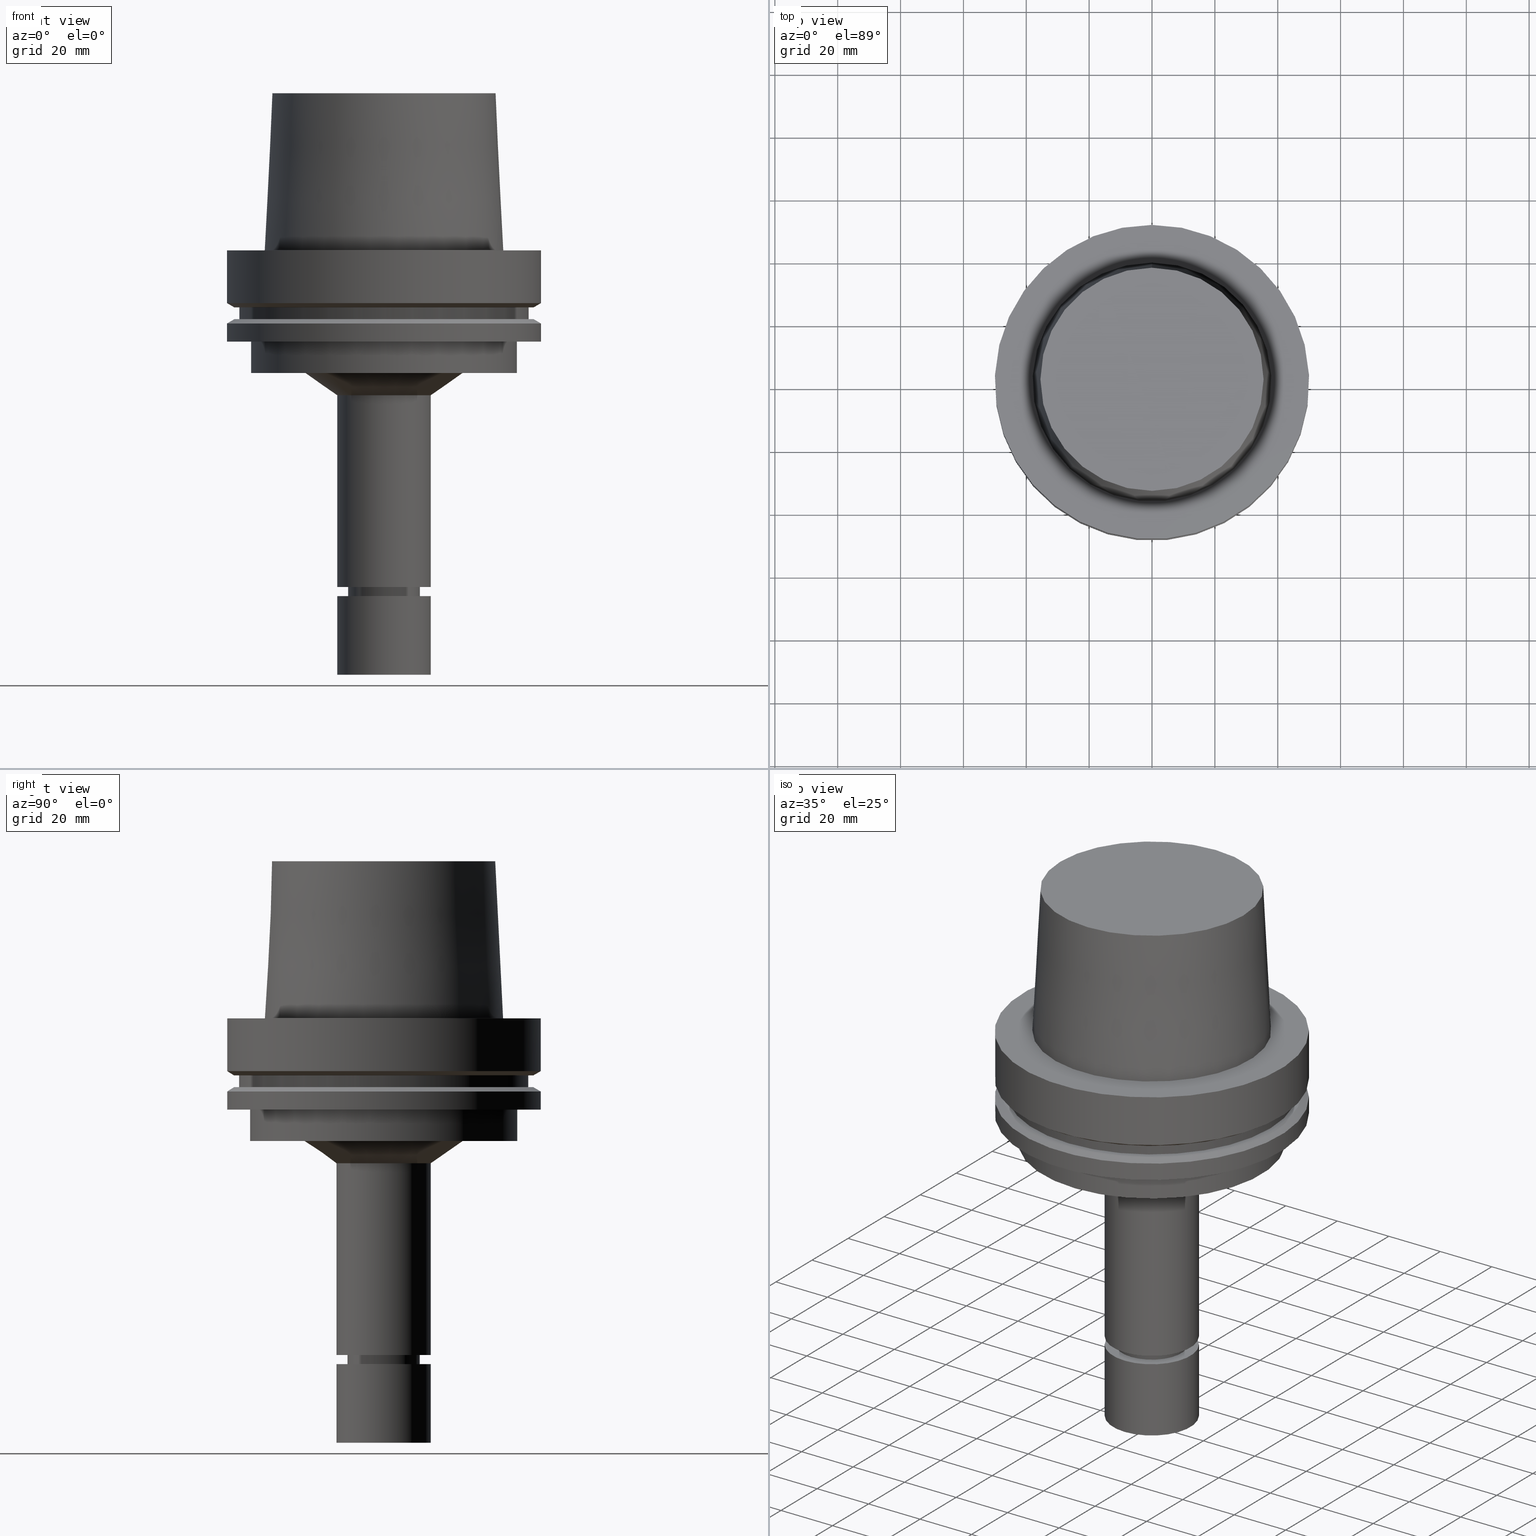
[diagram: canonical four-view strip — front | top / right | iso, engineering-drawing reading convention]
A machine part, canonical four-view strip (front | top / right | iso — engineering-drawing reading convention). The complete STEP part file that produces these views, byte-faithful:
ISO-10303-21;
HEADER;
FILE_DESCRIPTION((''),'1');
FILE_NAME('V:/90_\X2\53D65F9730C730FC30BF\X0\/00_\X2\6DE18DEF30C730FC30BF\X0\/ALL/HSK-BKUS\X2\52A05DE556F3\X0\_201801/HSK-A100-MEGAER/HSK-A100-MEGAER16-135NL.stp','2018-02-01T04:16:17',(''),(''),'Spatial Interop R21 SP3','Kubotek KeyCreator 2011 V10.0.2 (22737)',' ');
FILE_SCHEMA(('automotive_design'));
ENDSEC;
DATA;
#1=MECHANICAL_DESIGN_GEOMETRIC_PRESENTATION_REPRESENTATION(' ',(#14,#15,#16,#17,#18,#19,#20,#21,#22,#23,#24,#25,#26,#27,#28,#29,#30,#31,#32,#33,#34,#35,#36,#37,#38,#39,#40,#41,#42,#43,#44,#45,#46,#47,#48,#49,#50,#51,#52,#53,#54,#55,#56,#57,#58,#59,#60,#61),#10);
#2=PRODUCT_DEFINITION_CONTEXT('',#62,'design');
#3=APPLICATION_PROTOCOL_DEFINITION('INTERNATIONAL STANDARD','automotive_design',1994,#62);
#4=PRODUCT_CATEGORY_RELATIONSHIP('NONE','NONE',#63,#64);
#5=SHAPE_DEFINITION_REPRESENTATION(#65,#66);
#6=PRODUCT_DEFINITION_CONTEXT('',#67,'design');
#7=APPLICATION_PROTOCOL_DEFINITION('INTERNATIONAL STANDARD','automotive_design',1994,#67);
#8=PRODUCT_CATEGORY_RELATIONSHIP('NONE','NONE',#68,#69);
#9=SHAPE_DEFINITION_REPRESENTATION(#70,#71);
#10= (GEOMETRIC_REPRESENTATION_CONTEXT(3)GLOBAL_UNCERTAINTY_ASSIGNED_CONTEXT((#74))GLOBAL_UNIT_ASSIGNED_CONTEXT((#76,#77,#78))REPRESENTATION_CONTEXT('NONE','WORKSPACE'));
#14=STYLED_ITEM('',(#80,#81),#82);
#15=STYLED_ITEM('',(#83),#84);
#16=STYLED_ITEM('',(#85),#86);
#17=STYLED_ITEM('',(#87),#88);
#18=STYLED_ITEM('',(#89,#90),#91);
#19=STYLED_ITEM('',(#92),#93);
#20=STYLED_ITEM('',(#94,#95),#96);
#21=STYLED_ITEM('',(#97),#98);
#22=STYLED_ITEM('',(#99,#100),#101);
#23=STYLED_ITEM('',(#102,#103),#104);
#24=STYLED_ITEM('',(#105),#106);
#25=STYLED_ITEM('',(#107),#108);
#26=STYLED_ITEM('',(#109),#110);
#27=STYLED_ITEM('',(#111),#112);
#28=STYLED_ITEM('',(#113),#114);
#29=STYLED_ITEM('',(#115),#116);
#30=STYLED_ITEM('',(#117,#118),#119);
#31=STYLED_ITEM('',(#120,#121),#122);
#32=STYLED_ITEM('',(#123),#124);
#33=STYLED_ITEM('',(#125),#126);
#34=STYLED_ITEM('',(#127,#128),#129);
#35=STYLED_ITEM('',(#130,#131),#132);
#36=STYLED_ITEM('',(#133),#134);
#37=STYLED_ITEM('',(#135),#136);
#38=STYLED_ITEM('',(#137,#138),#139);
#39=STYLED_ITEM('',(#140,#141),#142);
#40=STYLED_ITEM('',(#143,#144),#145);
#41=STYLED_ITEM('',(#146),#147);
#42=STYLED_ITEM('',(#148,#149),#150);
#43=STYLED_ITEM('',(#151,#152),#153);
#44=STYLED_ITEM('',(#154,#155),#156);
#45=STYLED_ITEM('',(#157,#158),#159);
#46=STYLED_ITEM('',(#160),#161);
#47=STYLED_ITEM('',(#162),#163);
#48=STYLED_ITEM('',(#164,#165),#166);
#49=STYLED_ITEM('',(#167),#168);
#50=STYLED_ITEM('',(#169,#170),#171);
#51=STYLED_ITEM('',(#172,#173),#174);
#52=STYLED_ITEM('',(#175,#176),#177);
#53=STYLED_ITEM('',(#178,#179),#180);
#54=STYLED_ITEM('',(#181,#182),#183);
#55=STYLED_ITEM('',(#184),#185);
#56=STYLED_ITEM('',(#186),#187);
#57=STYLED_ITEM('',(#188),#189);
#58=STYLED_ITEM('',(#190,#191),#192);
#59=STYLED_ITEM('',(#193,#194),#195);
#60=STYLED_ITEM('',(#196,#197),#198);
#61=STYLED_ITEM('',(#199,#200),#201);
#62=APPLICATION_CONTEXT(' ');
#63=PRODUCT_CATEGORY('part','NONE');
#64=PRODUCT_RELATED_PRODUCT_CATEGORY('detail',' ',(#202));
#65=PRODUCT_DEFINITION_SHAPE('NONE','NONE',#203);
#66=ADVANCED_BREP_SHAPE_REPRESENTATION('Unnamed[1]',(#91,#204),#10);
#67=APPLICATION_CONTEXT(' ');
#68=PRODUCT_CATEGORY('part','NONE');
#69=PRODUCT_RELATED_PRODUCT_CATEGORY('detail',' ',(#205));
#70=PRODUCT_DEFINITION_SHAPE('NONE','NONE',#206);
#71=ADVANCED_BREP_SHAPE_REPRESENTATION('Unnamed[1]',(#129,#207),#10);
#74=UNCERTAINTY_MEASURE_WITH_UNIT(LENGTH_MEASURE(1.0E-006),#76,'','');
#76= (CONVERSION_BASED_UNIT('MILLIMETRE',#210)LENGTH_UNIT()NAMED_UNIT(#213));
#77= (NAMED_UNIT(#215)PLANE_ANGLE_UNIT()SI_UNIT($,.RADIAN.));
#78= (NAMED_UNIT(#215)SOLID_ANGLE_UNIT()SI_UNIT($,.STERADIAN.));
#80=PRESENTATION_STYLE_ASSIGNMENT((#221));
#81=PRESENTATION_STYLE_ASSIGNMENT((#222));
#82=ADVANCED_FACE('Unnamed[1]',(#223),#224,.T.);
#83=PRESENTATION_STYLE_ASSIGNMENT((#225));
#84=EDGE_CURVE('Unnamed[1]',#226,#226,#227,.T.);
#85=PRESENTATION_STYLE_ASSIGNMENT((#228));
#86=EDGE_CURVE('Unnamed[1]',#229,#229,#230,.T.);
#87=PRESENTATION_STYLE_ASSIGNMENT((#231));
#88=EDGE_CURVE('Unnamed[1]',#232,#232,#233,.T.);
#89=PRESENTATION_STYLE_ASSIGNMENT((#234));
#90=PRESENTATION_STYLE_ASSIGNMENT((#235));
#91=MANIFOLD_SOLID_BREP('Unnamed[1]',#236);
#92=PRESENTATION_STYLE_ASSIGNMENT((#237));
#93=EDGE_CURVE('Unnamed[1]',#238,#238,#239,.T.);
#94=PRESENTATION_STYLE_ASSIGNMENT((#240));
#95=PRESENTATION_STYLE_ASSIGNMENT((#241));
#96=ADVANCED_FACE('Unnamed[1]',(#242,#243),#244,.T.);
#97=PRESENTATION_STYLE_ASSIGNMENT((#245));
#98=EDGE_CURVE('Unnamed[1]',#246,#246,#247,.T.);
#99=PRESENTATION_STYLE_ASSIGNMENT((#248));
#100=PRESENTATION_STYLE_ASSIGNMENT((#249));
#101=ADVANCED_FACE('Unnamed[1]',(#250,#251),#252,.T.);
#102=PRESENTATION_STYLE_ASSIGNMENT((#253));
#103=PRESENTATION_STYLE_ASSIGNMENT((#254));
#104=ADVANCED_FACE('Unnamed[1]',(#255,#256),#257,.T.);
#105=PRESENTATION_STYLE_ASSIGNMENT((#258));
#106=EDGE_CURVE('Unnamed[1]',#259,#259,#260,.T.);
#107=PRESENTATION_STYLE_ASSIGNMENT((#261));
#108=EDGE_CURVE('Unnamed[1]',#262,#262,#263,.T.);
#109=PRESENTATION_STYLE_ASSIGNMENT((#264));
#110=EDGE_CURVE('Unnamed[1]',#265,#265,#266,.T.);
#111=PRESENTATION_STYLE_ASSIGNMENT((#267));
#112=EDGE_CURVE('Unnamed[1]',#268,#268,#269,.T.);
#113=PRESENTATION_STYLE_ASSIGNMENT((#270));
#114=EDGE_CURVE('Unnamed[1]',#271,#271,#272,.T.);
#115=PRESENTATION_STYLE_ASSIGNMENT((#273));
#116=EDGE_CURVE('Unnamed[1]',#274,#274,#275,.T.);
#117=PRESENTATION_STYLE_ASSIGNMENT((#276));
#118=PRESENTATION_STYLE_ASSIGNMENT((#277));
#119=ADVANCED_FACE('Unnamed[1]',(#278,#279),#280,.T.);
#120=PRESENTATION_STYLE_ASSIGNMENT((#281));
#121=PRESENTATION_STYLE_ASSIGNMENT((#282));
#122=ADVANCED_FACE('Unnamed[1]',(#283,#284),#285,.T.);
#123=PRESENTATION_STYLE_ASSIGNMENT((#286));
#124=EDGE_CURVE('Unnamed[1]',#287,#287,#288,.T.);
#125=PRESENTATION_STYLE_ASSIGNMENT((#289));
#126=EDGE_CURVE('Unnamed[1]',#290,#290,#291,.T.);
#127=PRESENTATION_STYLE_ASSIGNMENT((#292));
#128=PRESENTATION_STYLE_ASSIGNMENT((#293));
#129=MANIFOLD_SOLID_BREP('Unnamed[1]',#294);
#130=PRESENTATION_STYLE_ASSIGNMENT((#295));
#131=PRESENTATION_STYLE_ASSIGNMENT((#296));
#132=ADVANCED_FACE('Unnamed[1]',(#297,#298),#299,.T.);
#133=PRESENTATION_STYLE_ASSIGNMENT((#300));
#134=EDGE_CURVE('Unnamed[1]',#301,#301,#302,.T.);
#135=PRESENTATION_STYLE_ASSIGNMENT((#303));
#136=EDGE_CURVE('Unnamed[1]',#304,#304,#305,.T.);
#137=PRESENTATION_STYLE_ASSIGNMENT((#306));
#138=PRESENTATION_STYLE_ASSIGNMENT((#307));
#139=ADVANCED_FACE('Unnamed[1]',(#308,#309),#310,.T.);
#140=PRESENTATION_STYLE_ASSIGNMENT((#311));
#141=PRESENTATION_STYLE_ASSIGNMENT((#312));
#142=ADVANCED_FACE('Unnamed[1]',(#313,#314),#315,.T.);
#143=PRESENTATION_STYLE_ASSIGNMENT((#316));
#144=PRESENTATION_STYLE_ASSIGNMENT((#317));
#145=ADVANCED_FACE('Unnamed[1]',(#318,#319),#320,.T.);
#146=PRESENTATION_STYLE_ASSIGNMENT((#321));
#147=EDGE_CURVE('Unnamed[1]',#322,#322,#323,.T.);
#148=PRESENTATION_STYLE_ASSIGNMENT((#324));
#149=PRESENTATION_STYLE_ASSIGNMENT((#325));
#150=ADVANCED_FACE('Unnamed[1]',(#326),#327,.T.);
#151=PRESENTATION_STYLE_ASSIGNMENT((#328));
#152=PRESENTATION_STYLE_ASSIGNMENT((#329));
#153=ADVANCED_FACE('Unnamed[1]',(#330),#331,.T.);
#154=PRESENTATION_STYLE_ASSIGNMENT((#332));
#155=PRESENTATION_STYLE_ASSIGNMENT((#333));
#156=ADVANCED_FACE('Unnamed[1]',(#334,#335),#336,.T.);
#157=PRESENTATION_STYLE_ASSIGNMENT((#337));
#158=PRESENTATION_STYLE_ASSIGNMENT((#338));
#159=ADVANCED_FACE('Unnamed[1]',(#339,#340),#341,.T.);
#160=PRESENTATION_STYLE_ASSIGNMENT((#342));
#161=EDGE_CURVE('Unnamed[1]',#343,#343,#344,.T.);
#162=PRESENTATION_STYLE_ASSIGNMENT((#345));
#163=EDGE_CURVE('Unnamed[1]',#346,#346,#347,.T.);
#164=PRESENTATION_STYLE_ASSIGNMENT((#348));
#165=PRESENTATION_STYLE_ASSIGNMENT((#349));
#166=ADVANCED_FACE('Unnamed[1]',(#350,#351),#352,.T.);
#167=PRESENTATION_STYLE_ASSIGNMENT((#353));
#168=EDGE_CURVE('Unnamed[1]',#354,#354,#355,.T.);
#169=PRESENTATION_STYLE_ASSIGNMENT((#356));
#170=PRESENTATION_STYLE_ASSIGNMENT((#357));
#171=ADVANCED_FACE('Unnamed[1]',(#358,#359),#360,.T.);
#172=PRESENTATION_STYLE_ASSIGNMENT((#361));
#173=PRESENTATION_STYLE_ASSIGNMENT((#362));
#174=ADVANCED_FACE('Unnamed[1]',(#363,#364),#365,.T.);
#175=PRESENTATION_STYLE_ASSIGNMENT((#366));
#176=PRESENTATION_STYLE_ASSIGNMENT((#367));
#177=ADVANCED_FACE('Unnamed[1]',(#368,#369),#370,.T.);
#178=PRESENTATION_STYLE_ASSIGNMENT((#371));
#179=PRESENTATION_STYLE_ASSIGNMENT((#372));
#180=ADVANCED_FACE('Unnamed[1]',(#373,#374),#375,.T.);
#181=PRESENTATION_STYLE_ASSIGNMENT((#376));
#182=PRESENTATION_STYLE_ASSIGNMENT((#377));
#183=ADVANCED_FACE('Unnamed[1]',(#378),#379,.T.);
#184=PRESENTATION_STYLE_ASSIGNMENT((#380));
#185=EDGE_CURVE('Unnamed[1]',#381,#381,#382,.T.);
#186=PRESENTATION_STYLE_ASSIGNMENT((#383));
#187=EDGE_CURVE('Unnamed[1]',#384,#384,#385,.T.);
#188=PRESENTATION_STYLE_ASSIGNMENT((#386));
#189=EDGE_CURVE('Unnamed[1]',#387,#387,#388,.T.);
#190=PRESENTATION_STYLE_ASSIGNMENT((#389));
#191=PRESENTATION_STYLE_ASSIGNMENT((#390));
#192=ADVANCED_FACE('Unnamed[1]',(#391,#392),#393,.T.);
#193=PRESENTATION_STYLE_ASSIGNMENT((#394));
#194=PRESENTATION_STYLE_ASSIGNMENT((#395));
#195=ADVANCED_FACE('Unnamed[1]',(#396,#397),#398,.T.);
#196=PRESENTATION_STYLE_ASSIGNMENT((#399));
#197=PRESENTATION_STYLE_ASSIGNMENT((#400));
#198=ADVANCED_FACE('Unnamed[1]',(#401,#402),#403,.T.);
#199=PRESENTATION_STYLE_ASSIGNMENT((#404));
#200=PRESENTATION_STYLE_ASSIGNMENT((#405));
#201=ADVANCED_FACE('Unnamed[1]',(#406,#407),#408,.T.);
#202=PRODUCT('Unnamed[1]','Unnamed[1]','PART-Unnamed[1]-DESC',(#409));
#203=PRODUCT_DEFINITION('NONE','NONE',#410,#2);
#204=AXIS2_PLACEMENT_3D('',#411,#412,#413);
#205=PRODUCT('Unnamed[1]','Unnamed[1]','PART-Unnamed[1]-DESC',(#414));
#206=PRODUCT_DEFINITION('NONE','NONE',#415,#6);
#207=AXIS2_PLACEMENT_3D('',#416,#417,#418);
#210=LENGTH_MEASURE_WITH_UNIT(LENGTH_MEASURE(1.0),#419);
#213=DIMENSIONAL_EXPONENTS(1.0,0.0,0.0,0.0,0.0,0.0,0.0);
#215=DIMENSIONAL_EXPONENTS(0.0,0.0,0.0,0.0,0.0,0.0,0.0);
#221=SURFACE_STYLE_USAGE(.BOTH.,#420);
#222=CURVE_STYLE('',#421,POSITIVE_LENGTH_MEASURE(1000.0),#422);
#223=FACE_OUTER_BOUND('',#423,.T.);
#224=PLANE('',#424);
#225=CURVE_STYLE('',#425,POSITIVE_LENGTH_MEASURE(1000.0),#426);
#226=VERTEX_POINT('',#427);
#227=CIRCLE('',#428,46.0);
#228=CURVE_STYLE('',#429,POSITIVE_LENGTH_MEASURE(1000.0),#430);
#229=VERTEX_POINT('',#431);
#230=CIRCLE('',#432,25.1435726714537);
#231=CURVE_STYLE('',#433,POSITIVE_LENGTH_MEASURE(1000.0),#434);
#232=VERTEX_POINT('',#435);
#233=CIRCLE('',#436,15.0000000000005);
#234=SURFACE_STYLE_USAGE(.BOTH.,#437);
#235=CURVE_STYLE('',#438,POSITIVE_LENGTH_MEASURE(1000.0),#439);
#236=CLOSED_SHELL('',(#183,#192,#119,#132,#101,#201,#174,#156,#198,#122,#195,#145,#177,#104,#96,#180,#139,#171,#142,#166,#82));
#237=CURVE_STYLE('',#440,POSITIVE_LENGTH_MEASURE(1000.0),#441);
#238=VERTEX_POINT('',#442);
#239=CIRCLE('',#443,42.5);
#240=SURFACE_STYLE_USAGE(.BOTH.,#444);
#241=CURVE_STYLE('',#445,POSITIVE_LENGTH_MEASURE(1000.0),#446);
#242=FACE_BOUND('',#447,.T.);
#243=FACE_BOUND('',#448,.T.);
#244=CYLINDRICAL_SURFACE('',#449,15.0000000000004);
#245=CURVE_STYLE('',#450,POSITIVE_LENGTH_MEASURE(1000.0),#451);
#246=VERTEX_POINT('',#452);
#247=CIRCLE('',#453,47.62259526);
#248=SURFACE_STYLE_USAGE(.BOTH.,#454);
#249=CURVE_STYLE('',#455,POSITIVE_LENGTH_MEASURE(1000.0),#456);
#250=FACE_BOUND('',#457,.T.);
#251=FACE_BOUND('',#458,.T.);
#252=CONICAL_SURFACE('',#459,48.81129763,1.04719755328238);
#253=SURFACE_STYLE_USAGE(.BOTH.,#460);
#254=CURVE_STYLE('',#461,POSITIVE_LENGTH_MEASURE(1000.0),#462);
#255=FACE_BOUND('',#463,.T.);
#256=FACE_BOUND('',#464,.T.);
#257=CONICAL_SURFACE('',#465,20.0717863357271,0.962446965226415);
#258=CURVE_STYLE('',#466,POSITIVE_LENGTH_MEASURE(1000.0),#467);
#259=VERTEX_POINT('',#468);
#260=CIRCLE('',#469,9.89999999999962);
#261=CURVE_STYLE('',#470,POSITIVE_LENGTH_MEASURE(1000.0),#471);
#262=VERTEX_POINT('',#472);
#263=CIRCLE('',#473,50.0);
#264=CURVE_STYLE('',#474,POSITIVE_LENGTH_MEASURE(1000.0),#475);
#265=VERTEX_POINT('',#476);
#266=CIRCLE('',#477,46.0);
#267=CURVE_STYLE('',#478,POSITIVE_LENGTH_MEASURE(1000.0),#479);
#268=VERTEX_POINT('',#480);
#269=CIRCLE('',#481,11.4999999999907);
#270=CURVE_STYLE('',#482,POSITIVE_LENGTH_MEASURE(1000.0),#483);
#271=VERTEX_POINT('',#484);
#272=CIRCLE('',#485,10.9999999999999);
#273=CURVE_STYLE('',#486,POSITIVE_LENGTH_MEASURE(1000.0),#487);
#274=VERTEX_POINT('',#488);
#275=CIRCLE('',#489,15.0000000000001);
#276=SURFACE_STYLE_USAGE(.BOTH.,#490);
#277=CURVE_STYLE('',#491,POSITIVE_LENGTH_MEASURE(1000.0),#492);
#278=FACE_OUTER_BOUND('',#493,.T.);
#279=FACE_BOUND('',#494,.T.);
#280=PLANE('',#495);
#281=SURFACE_STYLE_USAGE(.BOTH.,#496);
#282=CURVE_STYLE('',#497,POSITIVE_LENGTH_MEASURE(1000.0),#498);
#283=FACE_BOUND('',#499,.T.);
#284=FACE_BOUND('',#500,.T.);
#285=CYLINDRICAL_SURFACE('',#501,50.0);
#286=CURVE_STYLE('',#502,POSITIVE_LENGTH_MEASURE(1000.0),#503);
#287=VERTEX_POINT('',#504);
#288=CIRCLE('',#505,50.0);
#289=CURVE_STYLE('',#506,POSITIVE_LENGTH_MEASURE(1000.0),#507);
#290=VERTEX_POINT('',#508);
#291=CIRCLE('',#509,15.0);
#292=SURFACE_STYLE_USAGE(.BOTH.,#510);
#293=CURVE_STYLE('',#511,POSITIVE_LENGTH_MEASURE(1000.0),#512);
#294=CLOSED_SHELL('',(#150,#153,#159));
#295=SURFACE_STYLE_USAGE(.BOTH.,#513);
#296=CURVE_STYLE('',#514,POSITIVE_LENGTH_MEASURE(1000.0),#515);
#297=FACE_BOUND('',#516,.T.);
#298=FACE_BOUND('',#517,.T.);
#299=CYLINDRICAL_SURFACE('',#518,50.0);
#300=CURVE_STYLE('',#519,POSITIVE_LENGTH_MEASURE(1000.0),#520);
#301=VERTEX_POINT('',#521);
#302=CIRCLE('',#522,47.62259526);
#303=CURVE_STYLE('',#523,POSITIVE_LENGTH_MEASURE(1000.0),#524);
#304=VERTEX_POINT('',#525);
#305=CIRCLE('',#526,37.9999999999349);
#306=SURFACE_STYLE_USAGE(.BOTH.,#527);
#307=CURVE_STYLE('',#528,POSITIVE_LENGTH_MEASURE(1000.0),#529);
#308=FACE_BOUND('',#530,.T.);
#309=FACE_BOUND('',#531,.T.);
#310=CYLINDRICAL_SURFACE('',#532,11.4999999999964);
#311=SURFACE_STYLE_USAGE(.BOTH.,#533);
#312=CURVE_STYLE('',#534,POSITIVE_LENGTH_MEASURE(1000.0),#535);
#313=FACE_BOUND('',#536,.T.);
#314=FACE_BOUND('',#537,.T.);
#315=CYLINDRICAL_SURFACE('',#538,11.0000000000001);
#316=SURFACE_STYLE_USAGE(.BOTH.,#539);
#317=CURVE_STYLE('',#540,POSITIVE_LENGTH_MEASURE(1000.0),#541);
#318=FACE_BOUND('',#542,.T.);
#319=FACE_BOUND('',#543,.T.);
#320=CYLINDRICAL_SURFACE('',#544,42.5);
#321=CURVE_STYLE('',#545,POSITIVE_LENGTH_MEASURE(1000.0),#546);
#322=VERTEX_POINT('',#547);
#323=CIRCLE('',#548,11.0000000000003);
#324=SURFACE_STYLE_USAGE(.BOTH.,#549);
#325=CURVE_STYLE('',#550,POSITIVE_LENGTH_MEASURE(1000.0),#551);
#326=FACE_OUTER_BOUND('',#552,.T.);
#327=PLANE('',#553);
#328=SURFACE_STYLE_USAGE(.BOTH.,#554);
#329=CURVE_STYLE('',#555,POSITIVE_LENGTH_MEASURE(1000.0),#556);
#330=FACE_OUTER_BOUND('',#557,.T.);
#331=PLANE('',#558);
#332=SURFACE_STYLE_USAGE(.BOTH.,#559);
#333=CURVE_STYLE('',#560,POSITIVE_LENGTH_MEASURE(1000.0),#561);
#334=FACE_OUTER_BOUND('',#562,.T.);
#335=FACE_BOUND('',#563,.T.);
#336=PLANE('',#564);
#337=SURFACE_STYLE_USAGE(.BOTH.,#565);
#338=CURVE_STYLE('',#566,POSITIVE_LENGTH_MEASURE(1000.0),#567);
#339=FACE_BOUND('',#568,.T.);
#340=FACE_BOUND('',#569,.T.);
#341=CYLINDRICAL_SURFACE('',#570,15.0);
#342=CURVE_STYLE('',#571,POSITIVE_LENGTH_MEASURE(1000.0),#572);
#343=VERTEX_POINT('',#573);
#344=CIRCLE('',#574,35.5000000015618);
#345=CURVE_STYLE('',#575,POSITIVE_LENGTH_MEASURE(1000.0),#576);
#346=VERTEX_POINT('',#577);
#347=CIRCLE('',#578,50.0);
#348=SURFACE_STYLE_USAGE(.BOTH.,#579);
#349=CURVE_STYLE('',#580,POSITIVE_LENGTH_MEASURE(1000.0),#581);
#350=FACE_BOUND('',#582,.T.);
#351=FACE_BOUND('',#583,.T.);
#352=CONICAL_SURFACE('',#584,10.4499999999999,0.523598775598224);
#353=CURVE_STYLE('',#585,POSITIVE_LENGTH_MEASURE(1000.0),#586);
#354=VERTEX_POINT('',#587);
#355=CIRCLE('',#588,11.5000000000021);
#356=SURFACE_STYLE_USAGE(.BOTH.,#589);
#357=CURVE_STYLE('',#590,POSITIVE_LENGTH_MEASURE(1000.0),#591);
#358=FACE_BOUND('',#592,.T.);
#359=FACE_BOUND('',#593,.T.);
#360=CONICAL_SURFACE('',#594,11.250000000001,1.04719755118896);
#361=SURFACE_STYLE_USAGE(.BOTH.,#595);
#362=CURVE_STYLE('',#596,POSITIVE_LENGTH_MEASURE(1000.0),#597);
#363=FACE_BOUND('',#598,.T.);
#364=FACE_BOUND('',#599,.T.);
#365=CYLINDRICAL_SURFACE('',#600,46.0);
#366=SURFACE_STYLE_USAGE(.BOTH.,#601);
#367=CURVE_STYLE('',#602,POSITIVE_LENGTH_MEASURE(1000.0),#603);
#368=FACE_BOUND('',#604,.T.);
#369=FACE_OUTER_BOUND('',#605,.T.);
#370=PLANE('',#606);
#371=SURFACE_STYLE_USAGE(.BOTH.,#607);
#372=CURVE_STYLE('',#608,POSITIVE_LENGTH_MEASURE(1000.0),#609);
#373=FACE_BOUND('',#610,.T.);
#374=FACE_OUTER_BOUND('',#611,.T.);
#375=PLANE('',#612);
#376=SURFACE_STYLE_USAGE(.BOTH.,#613);
#377=CURVE_STYLE('',#614,POSITIVE_LENGTH_MEASURE(1000.0),#615);
#378=FACE_OUTER_BOUND('',#616,.T.);
#379=PLANE('',#617);
#380=CURVE_STYLE('',#618,POSITIVE_LENGTH_MEASURE(1000.0),#619);
#381=VERTEX_POINT('',#620);
#382=CIRCLE('',#621,42.5);
#383=CURVE_STYLE('',#622,POSITIVE_LENGTH_MEASURE(1000.0),#623);
#384=VERTEX_POINT('',#624);
#385=CIRCLE('',#625,15.0000000000002);
#386=CURVE_STYLE('',#626,POSITIVE_LENGTH_MEASURE(1000.0),#627);
#387=VERTEX_POINT('',#628);
#388=CIRCLE('',#629,50.0);
#389=SURFACE_STYLE_USAGE(.BOTH.,#630);
#390=CURVE_STYLE('',#631,POSITIVE_LENGTH_MEASURE(1000.0),#632);
#391=FACE_BOUND('',#633,.T.);
#392=FACE_BOUND('',#634,.T.);
#393=CONICAL_SURFACE('',#635,36.7500000007484,0.0499583956894843);
#394=SURFACE_STYLE_USAGE(.BOTH.,#636);
#395=CURVE_STYLE('',#637,POSITIVE_LENGTH_MEASURE(1000.0),#638);
#396=FACE_BOUND('',#639,.T.);
#397=FACE_OUTER_BOUND('',#640,.T.);
#398=PLANE('',#641);
#399=SURFACE_STYLE_USAGE(.BOTH.,#642);
#400=CURVE_STYLE('',#643,POSITIVE_LENGTH_MEASURE(1000.0),#644);
#401=FACE_BOUND('',#645,.T.);
#402=FACE_BOUND('',#646,.T.);
#403=CONICAL_SURFACE('',#647,48.81129763,1.04719755328238);
#404=SURFACE_STYLE_USAGE(.BOTH.,#648);
#405=CURVE_STYLE('',#649,POSITIVE_LENGTH_MEASURE(1000.0),#650);
#406=FACE_BOUND('',#651,.T.);
#407=FACE_OUTER_BOUND('',#652,.T.);
#408=PLANE('',#653);
#409=PRODUCT_CONTEXT('',#62,'mechanical');
#410=PRODUCT_DEFINITION_FORMATION_WITH_SPECIFIED_SOURCE(' ','NONE',#202,.NOT_KNOWN.);
#411=CARTESIAN_POINT('',(0.0,0.0,0.0));
#412=DIRECTION('',(0.0,0.0,1.0));
#413=DIRECTION('',(1.0,0.0,0.0));
#414=PRODUCT_CONTEXT('',#67,'mechanical');
#415=PRODUCT_DEFINITION_FORMATION_WITH_SPECIFIED_SOURCE(' ','NONE',#205,.NOT_KNOWN.);
#416=CARTESIAN_POINT('',(0.0,0.0,0.0));
#417=DIRECTION('',(0.0,0.0,1.0));
#418=DIRECTION('',(1.0,0.0,0.0));
#419= (NAMED_UNIT(#213)LENGTH_UNIT()SI_UNIT(.MILLI.,.METRE.));
#420=SURFACE_SIDE_STYLE('',(#655));
#421=DRAUGHTING_PRE_DEFINED_CURVE_FONT('continuous');
#422=COLOUR_RGB('',0.0,1.0,0.0);
#423=EDGE_LOOP('',(#656));
#424=AXIS2_PLACEMENT_3D('',#657,#658,#659);
#425=DRAUGHTING_PRE_DEFINED_CURVE_FONT('continuous');
#426=COLOUR_RGB('',0.0,1.0,0.0);
#427=CARTESIAN_POINT('',(1.33945743656742E-015,46.0,-21.875));
#428=AXIS2_PLACEMENT_3D('',#660,#661,#662);
#429=DRAUGHTING_PRE_DEFINED_CURVE_FONT('continuous');
#430=COLOUR_RGB('',0.0,1.0,0.0);
#431=CARTESIAN_POINT('',(2.38806125833734E-015,25.1435726714537,-39.0));
#432=AXIS2_PLACEMENT_3D('',#663,#664,#665);
#433=DRAUGHTING_PRE_DEFINED_CURVE_FONT('continuous');
#434=COLOUR_RGB('',0.0,1.0,0.0);
#435=CARTESIAN_POINT('',(2.82064573737379E-015,15.0000000000005,-46.0646406676217));
#436=AXIS2_PLACEMENT_3D('',#666,#667,#668);
#437=SURFACE_SIDE_STYLE('',(#669));
#438=DRAUGHTING_PRE_DEFINED_CURVE_FONT('continuous');
#439=COLOUR_RGB('',0.0,1.0,0.0);
#440=DRAUGHTING_PRE_DEFINED_CURVE_FONT('continuous');
#441=COLOUR_RGB('',0.0,1.0,0.0);
#442=CARTESIAN_POINT('',(1.77573785876366E-015,42.5,-29.0));
#443=AXIS2_PLACEMENT_3D('',#670,#671,#672);
#444=SURFACE_SIDE_STYLE('',(#673));
#445=DRAUGHTING_PRE_DEFINED_CURVE_FONT('continuous');
#446=COLOUR_RGB('',0.0,1.0,0.0);
#447=EDGE_LOOP('',(#674));
#448=EDGE_LOOP('',(#675));
#449=AXIS2_PLACEMENT_3D('',#676,#677,#678);
#450=DRAUGHTING_PRE_DEFINED_CURVE_FONT('continuous');
#451=COLOUR_RGB('',0.0,1.0,0.0);
#452=CARTESIAN_POINT('',(1.10983616172729E-015,47.62259526,-18.125));
#453=AXIS2_PLACEMENT_3D('',#679,#680,#681);
#454=SURFACE_SIDE_STYLE('',(#682));
#455=DRAUGHTING_PRE_DEFINED_CURVE_FONT('continuous');
#456=COLOUR_RGB('',0.0,1.0,0.0);
#457=EDGE_LOOP('',(#683));
#458=EDGE_LOOP('',(#684));
#459=AXIS2_PLACEMENT_3D('',#685,#686,#687);
#460=SURFACE_SIDE_STYLE('',(#688));
#461=DRAUGHTING_PRE_DEFINED_CURVE_FONT('continuous');
#462=COLOUR_RGB('',0.0,1.0,0.0);
#463=EDGE_LOOP('',(#689));
#464=EDGE_LOOP('',(#690));
#465=AXIS2_PLACEMENT_3D('',#691,#692,#693);
#466=DRAUGHTING_PRE_DEFINED_CURVE_FONT('continuous');
#467=COLOUR_RGB('',0.0,1.0,0.0);
#468=CARTESIAN_POINT('',(7.72752130261974E-015,9.89999999999963,-126.199999999999));
#469=AXIS2_PLACEMENT_3D('',#694,#695,#696);
#470=DRAUGHTING_PRE_DEFINED_CURVE_FONT('continuous');
#471=COLOUR_RGB('',0.0,1.0,0.0);
#472=CARTESIAN_POINT('',(1.0257889421431E-015,50.0,-16.75240474));
#473=AXIS2_PLACEMENT_3D('',#697,#698,#699);
#474=DRAUGHTING_PRE_DEFINED_CURVE_FONT('continuous');
#475=COLOUR_RGB('',0.0,1.0,0.0);
#476=CARTESIAN_POINT('',(1.10983616172729E-015,46.0,-18.125));
#477=AXIS2_PLACEMENT_3D('',#700,#701,#702);
#478=DRAUGHTING_PRE_DEFINED_CURVE_FONT('continuous');
#479=COLOUR_RGB('',0.0,1.0,0.0);
#480=CARTESIAN_POINT('',(6.55798360943408E-015,11.4999999999907,-107.1));
#481=AXIS2_PLACEMENT_3D('',#703,#704,#705);
#482=DRAUGHTING_PRE_DEFINED_CURVE_FONT('continuous');
#483=COLOUR_RGB('',0.0,1.0,0.0);
#484=CARTESIAN_POINT('',(6.93150088317393E-015,10.9999999999999,-113.199999999998));
#485=AXIS2_PLACEMENT_3D('',#706,#707,#708);
#486=DRAUGHTING_PRE_DEFINED_CURVE_FONT('continuous');
#487=COLOUR_RGB('',0.0,1.0,0.0);
#488=CARTESIAN_POINT('',(6.73555739531044E-015,15.0000000000001,-110.0));
#489=AXIS2_PLACEMENT_3D('',#709,#710,#711);
#490=SURFACE_SIDE_STYLE('',(#712));
#491=DRAUGHTING_PRE_DEFINED_CURVE_FONT('continuous');
#492=COLOUR_RGB('',0.0,1.0,0.0);
#493=EDGE_LOOP('',(#713));
#494=EDGE_LOOP('',(#714));
#495=AXIS2_PLACEMENT_3D('',#715,#716,#717);
#496=SURFACE_SIDE_STYLE('',(#718));
#497=DRAUGHTING_PRE_DEFINED_CURVE_FONT('continuous');
#498=COLOUR_RGB('',0.0,1.0,0.0);
#499=EDGE_LOOP('',(#719));
#500=EDGE_LOOP('',(#720));
#501=AXIS2_PLACEMENT_3D('',#721,#722,#723);
#502=DRAUGHTING_PRE_DEFINED_CURVE_FONT('continuous');
#503=COLOUR_RGB('',0.0,1.0,0.0);
#504=CARTESIAN_POINT('',(1.42350465615161E-015,50.0,-23.24759526));
#505=AXIS2_PLACEMENT_3D('',#724,#725,#726);
#506=DRAUGHTING_PRE_DEFINED_CURVE_FONT('continuous');
#507=COLOUR_RGB('',0.0,1.0,0.0);
#508=CARTESIAN_POINT('',(8.26636589424463E-015,15.0,-135.0));
#509=AXIS2_PLACEMENT_3D('',#727,#728,#729);
#510=SURFACE_SIDE_STYLE('',(#730));
#511=DRAUGHTING_PRE_DEFINED_CURVE_FONT('continuous');
#512=COLOUR_RGB('',0.0,1.0,0.0);
#513=SURFACE_SIDE_STYLE('',(#731));
#514=DRAUGHTING_PRE_DEFINED_CURVE_FONT('continuous');
#515=COLOUR_RGB('',0.0,1.0,0.0);
#516=EDGE_LOOP('',(#732));
#517=EDGE_LOOP('',(#733));
#518=AXIS2_PLACEMENT_3D('',#734,#735,#736);
#519=DRAUGHTING_PRE_DEFINED_CURVE_FONT('continuous');
#520=COLOUR_RGB('',0.0,1.0,0.0);
#521=CARTESIAN_POINT('',(1.33945743656742E-015,47.62259526,-21.875));
#522=AXIS2_PLACEMENT_3D('',#737,#738,#739);
#523=DRAUGHTING_PRE_DEFINED_CURVE_FONT('continuous');
#524=COLOUR_RGB('',0.0,1.0,0.0);
#525=CARTESIAN_POINT('',(-3.3636548776863E-032,37.9999999999349,-2.44634216324803E-015));
#526=AXIS2_PLACEMENT_3D('',#740,#741,#742);
#527=SURFACE_SIDE_STYLE('',(#743));
#528=DRAUGHTING_PRE_DEFINED_CURVE_FONT('continuous');
#529=COLOUR_RGB('',0.0,1.0,0.0);
#530=EDGE_LOOP('',(#744));
#531=EDGE_LOOP('',(#745));
#532=AXIS2_PLACEMENT_3D('',#746,#747,#748);
#533=SURFACE_SIDE_STYLE('',(#749));
#534=DRAUGHTING_PRE_DEFINED_CURVE_FONT('continuous');
#535=COLOUR_RGB('',0.0,1.0,0.0);
#536=EDGE_LOOP('',(#750));
#537=EDGE_LOOP('',(#751));
#538=AXIS2_PLACEMENT_3D('',#752,#753,#754);
#539=SURFACE_SIDE_STYLE('',(#755));
#540=DRAUGHTING_PRE_DEFINED_CURVE_FONT('continuous');
#541=COLOUR_RGB('',0.0,1.0,0.0);
#542=EDGE_LOOP('',(#756));
#543=EDGE_LOOP('',(#757));
#544=AXIS2_PLACEMENT_3D('',#758,#759,#760);
#545=DRAUGHTING_PRE_DEFINED_CURVE_FONT('continuous');
#546=COLOUR_RGB('',0.0,1.0,0.0);
#547=CARTESIAN_POINT('',(7.61085802635992E-015,11.0000000000003,-124.294744111672));
#548=AXIS2_PLACEMENT_3D('',#761,#762,#763);
#549=SURFACE_SIDE_STYLE('',(#764));
#550=DRAUGHTING_PRE_DEFINED_CURVE_FONT('continuous');
#551=COLOUR_RGB('',0.0,1.0,0.0);
#552=EDGE_LOOP('',(#765));
#553=AXIS2_PLACEMENT_3D('',#766,#767,#768);
#554=SURFACE_SIDE_STYLE('',(#769));
#555=DRAUGHTING_PRE_DEFINED_CURVE_FONT('continuous');
#556=COLOUR_RGB('',0.0,1.0,0.0);
#557=EDGE_LOOP('',(#770));
#558=AXIS2_PLACEMENT_3D('',#771,#772,#773);
#559=SURFACE_SIDE_STYLE('',(#774));
#560=DRAUGHTING_PRE_DEFINED_CURVE_FONT('continuous');
#561=COLOUR_RGB('',0.0,1.0,0.0);
#562=EDGE_LOOP('',(#775));
#563=EDGE_LOOP('',(#776));
#564=AXIS2_PLACEMENT_3D('',#777,#778,#779);
#565=SURFACE_SIDE_STYLE('',(#780));
#566=DRAUGHTING_PRE_DEFINED_CURVE_FONT('continuous');
#567=COLOUR_RGB('',0.0,1.0,0.0);
#568=EDGE_LOOP('',(#781));
#569=EDGE_LOOP('',(#782));
#570=AXIS2_PLACEMENT_3D('',#783,#784,#785);
#571=DRAUGHTING_PRE_DEFINED_CURVE_FONT('continuous');
#572=COLOUR_RGB('',0.0,1.0,0.0);
#573=CARTESIAN_POINT('',(-3.06161699786838E-015,35.5000000015618,50.0));
#574=AXIS2_PLACEMENT_3D('',#786,#787,#788);
#575=DRAUGHTING_PRE_DEFINED_CURVE_FONT('continuous');
#576=COLOUR_RGB('',0.0,1.0,0.0);
#577=CARTESIAN_POINT('',(-1.81547968506605E-031,50.0,-9.76766004263236E-016));
#578=AXIS2_PLACEMENT_3D('',#789,#790,#791);
#579=SURFACE_SIDE_STYLE('',(#792));
#580=DRAUGHTING_PRE_DEFINED_CURVE_FONT('continuous');
#581=COLOUR_RGB('',0.0,1.0,0.0);
#582=EDGE_LOOP('',(#793));
#583=EDGE_LOOP('',(#794));
#584=AXIS2_PLACEMENT_3D('',#795,#796,#797);
#585=DRAUGHTING_PRE_DEFINED_CURVE_FONT('continuous');
#586=COLOUR_RGB('',0.0,1.0,0.0);
#587=CARTESIAN_POINT('',(6.91382462919479E-015,11.5000000000021,-112.911324865397));
#588=AXIS2_PLACEMENT_3D('',#798,#799,#800);
#589=SURFACE_SIDE_STYLE('',(#801));
#590=DRAUGHTING_PRE_DEFINED_CURVE_FONT('continuous');
#591=COLOUR_RGB('',0.0,1.0,0.0);
#592=EDGE_LOOP('',(#802));
#593=EDGE_LOOP('',(#803));
#594=AXIS2_PLACEMENT_3D('',#804,#805,#806);
#595=SURFACE_SIDE_STYLE('',(#807));
#596=DRAUGHTING_PRE_DEFINED_CURVE_FONT('continuous');
#597=COLOUR_RGB('',0.0,1.0,0.0);
#598=EDGE_LOOP('',(#808));
#599=EDGE_LOOP('',(#809));
#600=AXIS2_PLACEMENT_3D('',#810,#811,#812);
#601=SURFACE_SIDE_STYLE('',(#813));
#602=DRAUGHTING_PRE_DEFINED_CURVE_FONT('continuous');
#603=COLOUR_RGB('',0.0,1.0,0.0);
#604=EDGE_LOOP('',(#814));
#605=EDGE_LOOP('',(#815));
#606=AXIS2_PLACEMENT_3D('',#816,#817,#818);
#607=SURFACE_SIDE_STYLE('',(#819));
#608=DRAUGHTING_PRE_DEFINED_CURVE_FONT('continuous');
#609=COLOUR_RGB('',0.0,1.0,0.0);
#610=EDGE_LOOP('',(#820));
#611=EDGE_LOOP('',(#821));
#612=AXIS2_PLACEMENT_3D('',#822,#823,#824);
#613=SURFACE_SIDE_STYLE('',(#825));
#614=DRAUGHTING_PRE_DEFINED_CURVE_FONT('continuous');
#615=COLOUR_RGB('',0.0,1.0,0.0);
#616=EDGE_LOOP('',(#826));
#617=AXIS2_PLACEMENT_3D('',#827,#828,#829);
#618=DRAUGHTING_PRE_DEFINED_CURVE_FONT('continuous');
#619=COLOUR_RGB('',0.0,1.0,0.0);
#620=CARTESIAN_POINT('',(2.38806125833734E-015,42.5,-39.0));
#621=AXIS2_PLACEMENT_3D('',#830,#831,#832);
#622=DRAUGHTING_PRE_DEFINED_CURVE_FONT('continuous');
#623=COLOUR_RGB('',0.0,1.0,0.0);
#624=CARTESIAN_POINT('',(6.55798360943403E-015,15.0000000000002,-107.099999999999));
#625=AXIS2_PLACEMENT_3D('',#833,#834,#835);
#626=DRAUGHTING_PRE_DEFINED_CURVE_FONT('continuous');
#627=COLOUR_RGB('',0.0,1.0,0.0);
#628=CARTESIAN_POINT('',(1.77573785876366E-015,50.0,-29.0));
#629=AXIS2_PLACEMENT_3D('',#836,#837,#838);
#630=SURFACE_SIDE_STYLE('',(#839));
#631=DRAUGHTING_PRE_DEFINED_CURVE_FONT('continuous');
#632=COLOUR_RGB('',0.0,1.0,0.0);
#633=EDGE_LOOP('',(#840));
#634=EDGE_LOOP('',(#841));
#635=AXIS2_PLACEMENT_3D('',#842,#843,#844);
#636=SURFACE_SIDE_STYLE('',(#845));
#637=DRAUGHTING_PRE_DEFINED_CURVE_FONT('continuous');
#638=COLOUR_RGB('',0.0,1.0,0.0);
#639=EDGE_LOOP('',(#846));
#640=EDGE_LOOP('',(#847));
#641=AXIS2_PLACEMENT_3D('',#848,#849,#850);
#642=SURFACE_SIDE_STYLE('',(#851));
#643=DRAUGHTING_PRE_DEFINED_CURVE_FONT('continuous');
#644=COLOUR_RGB('',0.0,1.0,0.0);
#645=EDGE_LOOP('',(#852));
#646=EDGE_LOOP('',(#853));
#647=AXIS2_PLACEMENT_3D('',#854,#855,#856);
#648=SURFACE_SIDE_STYLE('',(#857));
#649=DRAUGHTING_PRE_DEFINED_CURVE_FONT('continuous');
#650=COLOUR_RGB('',0.0,1.0,0.0);
#651=EDGE_LOOP('',(#858));
#652=EDGE_LOOP('',(#859));
#653=AXIS2_PLACEMENT_3D('',#860,#861,#862);
#655=SURFACE_STYLE_FILL_AREA(#863);
#656=ORIENTED_EDGE('',*,*,#106,.T.);
#657=CARTESIAN_POINT('',(7.72752130261977E-015,4.94999999999982,-126.2));
#658=DIRECTION('',(6.12323399573677E-017,8.19425372825961E-014,-1.0));
#659=DIRECTION('',(-5.02236045258797E-030,1.0,8.19425372825961E-014));
#660=CARTESIAN_POINT('',(1.33945743656742E-015,2.67891487313484E-015,-21.875));
#661=DIRECTION('',(6.12323399573677E-017,1.22464679914716E-016,-1.0));
#662=DIRECTION('',(-1.23259516440783E-032,1.0,1.22464679914716E-016));
#663=CARTESIAN_POINT('',(2.38806125833734E-015,4.77612251667468E-015,-39.0));
#664=DIRECTION('',(6.12323399573677E-017,1.22464679914658E-016,-1.0));
#665=DIRECTION('',(-1.23259516440791E-032,1.0,1.22464679914658E-016));
#666=CARTESIAN_POINT('',(2.82064573737379E-015,5.64129147474759E-015,-46.0646406676217));
#667=DIRECTION('',(6.12323399573677E-017,1.22464679914797E-016,-1.0));
#668=DIRECTION('',(-1.23259516440779E-032,1.0,1.22464679914797E-016));
#669=SURFACE_STYLE_FILL_AREA(#864);
#670=CARTESIAN_POINT('',(1.77573785876366E-015,3.55147571752733E-015,-29.0));
#671=DIRECTION('',(6.12323399573677E-017,1.22464679914687E-016,-1.0));
#672=DIRECTION('',(-1.23259516440783E-032,1.0,1.22464679914687E-016));
#673=SURFACE_STYLE_FILL_AREA(#865);
#674=ORIENTED_EDGE('',*,*,#187,.F.);
#675=ORIENTED_EDGE('',*,*,#88,.T.);
#676=CARTESIAN_POINT('',(4.68931467340391E-015,9.37862934680783E-015,-76.5823203338105));
#677=DIRECTION('',(6.12323399573677E-017,1.22464679914798E-016,-1.0));
#678=DIRECTION('',(-1.2325951644078E-032,1.0,1.22464679914798E-016));
#679=CARTESIAN_POINT('',(1.10983616172729E-015,2.21967232345458E-015,-18.125));
#680=DIRECTION('',(6.12323399573676E-017,1.22464679914752E-016,-1.0));
#681=DIRECTION('',(-1.23259516440726E-032,1.0,1.22464679914752E-016));
#682=SURFACE_STYLE_FILL_AREA(#866);
#683=ORIENTED_EDGE('',*,*,#98,.F.);
#684=ORIENTED_EDGE('',*,*,#108,.T.);
#685=CARTESIAN_POINT('',(1.06781255193519E-015,2.13562510387038E-015,-17.43870237));
#686=DIRECTION('',(-6.12323399573677E-017,-1.22464679914711E-016,1.0));
#687=DIRECTION('',(-1.23259516440829E-032,1.0,1.22464679914711E-016));
#688=SURFACE_STYLE_FILL_AREA(#867);
#689=ORIENTED_EDGE('',*,*,#88,.F.);
#690=ORIENTED_EDGE('',*,*,#86,.T.);
#691=CARTESIAN_POINT('',(2.60435349785557E-015,5.20870699571113E-015,-42.5323203338108));
#692=DIRECTION('',(-6.12323399573677E-017,-1.22464679914791E-016,1.0));
#693=DIRECTION('',(-1.23259516440786E-032,1.0,1.22464679914791E-016));
#694=CARTESIAN_POINT('',(7.72752130261974E-015,1.54550426052395E-014,-126.199999999999));
#695=DIRECTION('',(6.12323399573677E-017,1.22464679914681E-016,-1.0));
#696=DIRECTION('',(-1.23259516440806E-032,1.0,1.22464679914682E-016));
#697=CARTESIAN_POINT('',(1.0257889421431E-015,2.05157788428619E-015,-16.75240474));
#698=DIRECTION('',(6.12323399573677E-017,1.22464679914672E-016,-1.0));
#699=DIRECTION('',(-1.23259516440783E-032,1.0,1.22464679914672E-016));
#700=CARTESIAN_POINT('',(1.10983616172729E-015,2.21967232345458E-015,-18.125));
#701=DIRECTION('',(6.12323399573677E-017,1.22464679914716E-016,-1.0));
#702=DIRECTION('',(-1.23259516440783E-032,1.0,1.22464679914716E-016));
#703=CARTESIAN_POINT('',(6.55798360943408E-015,1.31159672188681E-014,-107.1));
#704=DIRECTION('',(6.12323399573677E-017,1.22464679914675E-016,-1.0));
#705=DIRECTION('',(-1.23259516440727E-032,1.0,1.22464679914675E-016));
#706=CARTESIAN_POINT('',(6.93150088317393E-015,1.38630017663478E-014,-113.199999999998));
#707=DIRECTION('',(6.12323399573676E-017,1.22464679914743E-016,-1.0));
#708=DIRECTION('',(-1.23259516440784E-032,1.0,1.22464679914743E-016));
#709=CARTESIAN_POINT('',(6.73555739531044E-015,1.34711147906209E-014,-110.0));
#710=DIRECTION('',(6.12323399573677E-017,1.22464679914735E-016,-1.0));
#711=DIRECTION('',(-1.23259516440783E-032,1.0,1.22464679914735E-016));
#712=SURFACE_STYLE_FILL_AREA(#868);
#713=ORIENTED_EDGE('',*,*,#163,.F.);
#714=ORIENTED_EDGE('',*,*,#136,.T.);
#715=CARTESIAN_POINT('',(-1.07592258641734E-031,43.9999999999675,-1.71155408375563E-015));
#716=DIRECTION('',(-6.12323399573677E-017,-1.22464679914735E-016,1.0));
#717=DIRECTION('',(1.23259516440783E-032,-1.0,-1.22464679914735E-016));
#718=SURFACE_STYLE_FILL_AREA(#869);
#719=ORIENTED_EDGE('',*,*,#189,.F.);
#720=ORIENTED_EDGE('',*,*,#124,.T.);
#721=CARTESIAN_POINT('',(1.59962125745764E-015,3.19924251491527E-015,-26.12379763));
#722=DIRECTION('',(6.12323399573677E-017,1.22464679914672E-016,-1.0));
#723=DIRECTION('',(-1.23259516440783E-032,1.0,1.22464679914672E-016));
#724=CARTESIAN_POINT('',(1.42350465615161E-015,2.84700931230322E-015,-23.24759526));
#725=DIRECTION('',(6.12323399573677E-017,1.22464679914672E-016,-1.0));
#726=DIRECTION('',(-1.23259516440783E-032,1.0,1.22464679914672E-016));
#727=CARTESIAN_POINT('',(8.26636589424463E-015,1.65327317884893E-014,-135.0));
#728=DIRECTION('',(6.12323399573677E-017,1.22464679914735E-016,-1.0));
#729=DIRECTION('',(-1.23259516440783E-032,1.0,1.22464679914735E-016));
#730=SURFACE_STYLE_FILL_AREA(#870);
#731=SURFACE_STYLE_FILL_AREA(#871);
#732=ORIENTED_EDGE('',*,*,#108,.F.);
#733=ORIENTED_EDGE('',*,*,#163,.T.);
#734=CARTESIAN_POINT('',(5.12894471071548E-016,1.0257889421431E-015,-8.37620236999999));
#735=DIRECTION('',(6.12323399573677E-017,1.22464679914672E-016,-1.0));
#736=DIRECTION('',(-1.23259516440783E-032,1.0,1.22464679914672E-016));
#737=CARTESIAN_POINT('',(1.33945743656742E-015,2.67891487313484E-015,-21.875));
#738=DIRECTION('',(6.12323399573676E-017,1.22464679914752E-016,-1.0));
#739=DIRECTION('',(-1.23259516440726E-032,1.0,1.22464679914752E-016));
#740=CARTESIAN_POINT('',(0.0,0.0,0.0));
#741=DIRECTION('',(6.12323399573677E-017,1.22464679914704E-016,-1.0));
#742=DIRECTION('',(-1.23259516440805E-032,1.0,1.22464679914704E-016));
#743=SURFACE_STYLE_FILL_AREA(#872);
#744=ORIENTED_EDGE('',*,*,#168,.F.);
#745=ORIENTED_EDGE('',*,*,#112,.T.);
#746=CARTESIAN_POINT('',(6.73590411931443E-015,1.34718082386289E-014,-110.005662432699));
#747=DIRECTION('',(6.12323399573677E-017,1.22464679914755E-016,-1.0));
#748=DIRECTION('',(-1.23259516440822E-032,1.0,1.22464679914755E-016));
#749=SURFACE_STYLE_FILL_AREA(#873);
#750=ORIENTED_EDGE('',*,*,#147,.F.);
#751=ORIENTED_EDGE('',*,*,#114,.T.);
#752=CARTESIAN_POINT('',(7.27117945476692E-015,1.45423589095338E-014,-118.747372055835));
#753=DIRECTION('',(6.12323399573677E-017,1.22464679914741E-016,-1.0));
#754=DIRECTION('',(-1.23259516440782E-032,1.0,1.22464679914741E-016));
#755=SURFACE_STYLE_FILL_AREA(#874);
#756=ORIENTED_EDGE('',*,*,#185,.F.);
#757=ORIENTED_EDGE('',*,*,#93,.T.);
#758=CARTESIAN_POINT('',(2.0818995585505E-015,4.163799117101E-015,-34.0));
#759=DIRECTION('',(6.12323399573677E-017,1.22464679914687E-016,-1.0));
#760=DIRECTION('',(-1.23259516440783E-032,1.0,1.22464679914687E-016));
#761=CARTESIAN_POINT('',(7.61085802635992E-015,1.52217160527198E-014,-124.294744111672));
#762=DIRECTION('',(6.12323399573676E-017,1.22464679914739E-016,-1.0));
#763=DIRECTION('',(-1.2325951644078E-032,1.0,1.22464679914739E-016));
#764=SURFACE_STYLE_FILL_AREA(#875);
#765=ORIENTED_EDGE('',*,*,#126,.T.);
#766=CARTESIAN_POINT('',(8.26636589424463E-015,7.50000000000002,-135.0));
#767=DIRECTION('',(6.12323399573677E-017,1.22464679914735E-016,-1.0));
#768=DIRECTION('',(-1.23259516440783E-032,1.0,1.22464679914735E-016));
#769=SURFACE_STYLE_FILL_AREA(#876);
#770=ORIENTED_EDGE('',*,*,#116,.F.);
#771=CARTESIAN_POINT('',(6.73555739531044E-015,7.50000000000005,-110.0));
#772=DIRECTION('',(-6.12323399573677E-017,-1.22464679914735E-016,1.0));
#773=DIRECTION('',(1.23259516440783E-032,-1.0,-1.22464679914735E-016));
#774=SURFACE_STYLE_FILL_AREA(#877);
#775=ORIENTED_EDGE('',*,*,#134,.F.);
#776=ORIENTED_EDGE('',*,*,#84,.T.);
#777=CARTESIAN_POINT('',(1.33945743656742E-015,46.81129763,-21.875));
#778=DIRECTION('',(-6.12323399573677E-017,-1.22464679914735E-016,1.0));
#779=DIRECTION('',(1.23259516440783E-032,-1.0,-1.22464679914735E-016));
#780=SURFACE_STYLE_FILL_AREA(#878);
#781=ORIENTED_EDGE('',*,*,#126,.F.);
#782=ORIENTED_EDGE('',*,*,#116,.T.);
#783=CARTESIAN_POINT('',(7.50096164477754E-015,1.50019232895551E-014,-122.5));
#784=DIRECTION('',(6.12323399573677E-017,1.22464679914735E-016,-1.0));
#785=DIRECTION('',(-1.23259516440783E-032,1.0,1.22464679914735E-016));
#786=CARTESIAN_POINT('',(-3.06161699786838E-015,-6.12323399573676E-015,50.0));
#787=DIRECTION('',(6.12323399573677E-017,1.22464679914683E-016,-1.0));
#788=DIRECTION('',(-1.23259516440817E-032,1.0,1.22464679914683E-016));
#789=CARTESIAN_POINT('',(0.0,0.0,0.0));
#790=DIRECTION('',(6.12323399573677E-017,1.22464679914672E-016,-1.0));
#791=DIRECTION('',(-1.23259516440783E-032,1.0,1.22464679914672E-016));
#792=SURFACE_STYLE_FILL_AREA(#879);
#793=ORIENTED_EDGE('',*,*,#106,.F.);
#794=ORIENTED_EDGE('',*,*,#147,.T.);
#795=CARTESIAN_POINT('',(7.66918966448983E-015,1.53383793289797E-014,-125.247372055836));
#796=DIRECTION('',(-6.12323399573677E-017,-1.22464679914712E-016,1.0));
#797=DIRECTION('',(-1.2325951644075E-032,1.0,1.22464679914712E-016));
#798=CARTESIAN_POINT('',(6.91382462919479E-015,1.38276492583896E-014,-112.911324865397));
#799=DIRECTION('',(6.12323399573676E-017,1.22464679914694E-016,-1.0));
#800=DIRECTION('',(-1.23259516440761E-032,1.0,1.22464679914694E-016));
#801=SURFACE_STYLE_FILL_AREA(#880);
#802=ORIENTED_EDGE('',*,*,#114,.F.);
#803=ORIENTED_EDGE('',*,*,#168,.T.);
#804=CARTESIAN_POINT('',(6.92266275618436E-015,1.38453255123687E-014,-113.055662432698));
#805=DIRECTION('',(-6.12323399573677E-017,-1.22464679914718E-016,1.0));
#806=DIRECTION('',(-1.23259516440772E-032,1.0,1.22464679914718E-016));
#807=SURFACE_STYLE_FILL_AREA(#881);
#808=ORIENTED_EDGE('',*,*,#84,.F.);
#809=ORIENTED_EDGE('',*,*,#110,.T.);
#810=CARTESIAN_POINT('',(1.22464679914735E-015,2.44929359829471E-015,-20.0));
#811=DIRECTION('',(6.12323399573677E-017,1.22464679914716E-016,-1.0));
#812=DIRECTION('',(-1.23259516440783E-032,1.0,1.22464679914716E-016));
#813=SURFACE_STYLE_FILL_AREA(#882);
#814=ORIENTED_EDGE('',*,*,#86,.F.);
#815=ORIENTED_EDGE('',*,*,#185,.T.);
#816=CARTESIAN_POINT('',(2.38806125833734E-015,33.8217863357269,-39.0));
#817=DIRECTION('',(6.12323399573677E-017,1.22464679914735E-016,-1.0));
#818=DIRECTION('',(-1.23259516440783E-032,1.0,1.22464679914735E-016));
#819=SURFACE_STYLE_FILL_AREA(#883);
#820=ORIENTED_EDGE('',*,*,#112,.F.);
#821=ORIENTED_EDGE('',*,*,#187,.T.);
#822=CARTESIAN_POINT('',(6.55798360943405E-015,13.2499999999955,-107.1));
#823=DIRECTION('',(6.12323399573677E-017,1.99074430692201E-013,-1.0));
#824=DIRECTION('',(-1.21946203696951E-029,1.0,1.99074430692201E-013));
#825=SURFACE_STYLE_FILL_AREA(#884);
#826=ORIENTED_EDGE('',*,*,#161,.F.);
#827=CARTESIAN_POINT('',(-3.06161699786838E-015,17.7500000007809,50.0));
#828=DIRECTION('',(-6.12323399573677E-017,-1.22464679914735E-016,1.0));
#829=DIRECTION('',(1.23259516440783E-032,-1.0,-1.22464679914735E-016));
#830=CARTESIAN_POINT('',(2.38806125833734E-015,4.77612251667468E-015,-39.0));
#831=DIRECTION('',(6.12323399573677E-017,1.22464679914687E-016,-1.0));
#832=DIRECTION('',(-1.23259516440783E-032,1.0,1.22464679914687E-016));
#833=CARTESIAN_POINT('',(6.55798360943403E-015,1.31159672188681E-014,-107.099999999999));
#834=DIRECTION('',(6.12323399573677E-017,1.22464679914799E-016,-1.0));
#835=DIRECTION('',(-1.23259516440781E-032,1.0,1.22464679914799E-016));
#836=CARTESIAN_POINT('',(1.77573785876366E-015,3.55147571752733E-015,-29.0));
#837=DIRECTION('',(6.12323399573677E-017,1.22464679914672E-016,-1.0));
#838=DIRECTION('',(-1.23259516440783E-032,1.0,1.22464679914672E-016));
#839=SURFACE_STYLE_FILL_AREA(#885);
#840=ORIENTED_EDGE('',*,*,#136,.F.);
#841=ORIENTED_EDGE('',*,*,#161,.T.);
#842=CARTESIAN_POINT('',(-1.53080849893419E-015,-3.06161699786838E-015,25.0));
#843=DIRECTION('',(6.12323399573676E-017,1.22464679914694E-016,-1.0));
#844=DIRECTION('',(-1.23259516440811E-032,1.0,1.22464679914694E-016));
#845=SURFACE_STYLE_FILL_AREA(#886);
#846=ORIENTED_EDGE('',*,*,#93,.F.);
#847=ORIENTED_EDGE('',*,*,#189,.T.);
#848=CARTESIAN_POINT('',(1.77573785876366E-015,46.25,-29.0));
#849=DIRECTION('',(6.12323399573677E-017,1.22464679914735E-016,-1.0));
#850=DIRECTION('',(-1.23259516440783E-032,1.0,1.22464679914735E-016));
#851=SURFACE_STYLE_FILL_AREA(#887);
#852=ORIENTED_EDGE('',*,*,#124,.F.);
#853=ORIENTED_EDGE('',*,*,#134,.T.);
#854=CARTESIAN_POINT('',(1.38148104635951E-015,2.76296209271903E-015,-22.56129763));
#855=DIRECTION('',(6.12323399573677E-017,1.22464679914711E-016,-1.0));
#856=DIRECTION('',(-1.23259516440829E-032,1.0,1.22464679914711E-016));
#857=SURFACE_STYLE_FILL_AREA(#888);
#858=ORIENTED_EDGE('',*,*,#110,.F.);
#859=ORIENTED_EDGE('',*,*,#98,.T.);
#860=CARTESIAN_POINT('',(1.10983616172729E-015,46.81129763,-18.125));
#861=DIRECTION('',(6.12323399573677E-017,1.22464679914735E-016,-1.0));
#862=DIRECTION('',(-1.23259516440783E-032,1.0,1.22464679914735E-016));
#863=FILL_AREA_STYLE('',(#889));
#864=FILL_AREA_STYLE('',(#890));
#865=FILL_AREA_STYLE('',(#891));
#866=FILL_AREA_STYLE('',(#892));
#867=FILL_AREA_STYLE('',(#893));
#868=FILL_AREA_STYLE('',(#894));
#869=FILL_AREA_STYLE('',(#895));
#870=FILL_AREA_STYLE('',(#896));
#871=FILL_AREA_STYLE('',(#897));
#872=FILL_AREA_STYLE('',(#898));
#873=FILL_AREA_STYLE('',(#899));
#874=FILL_AREA_STYLE('',(#900));
#875=FILL_AREA_STYLE('',(#901));
#876=FILL_AREA_STYLE('',(#902));
#877=FILL_AREA_STYLE('',(#903));
#878=FILL_AREA_STYLE('',(#904));
#879=FILL_AREA_STYLE('',(#905));
#880=FILL_AREA_STYLE('',(#906));
#881=FILL_AREA_STYLE('',(#907));
#882=FILL_AREA_STYLE('',(#908));
#883=FILL_AREA_STYLE('',(#909));
#884=FILL_AREA_STYLE('',(#910));
#885=FILL_AREA_STYLE('',(#911));
#886=FILL_AREA_STYLE('',(#912));
#887=FILL_AREA_STYLE('',(#913));
#888=FILL_AREA_STYLE('',(#914));
#889=FILL_AREA_STYLE_COLOUR('',#915);
#890=FILL_AREA_STYLE_COLOUR('',#916);
#891=FILL_AREA_STYLE_COLOUR('',#917);
#892=FILL_AREA_STYLE_COLOUR('',#918);
#893=FILL_AREA_STYLE_COLOUR('',#919);
#894=FILL_AREA_STYLE_COLOUR('',#920);
#895=FILL_AREA_STYLE_COLOUR('',#921);
#896=FILL_AREA_STYLE_COLOUR('',#922);
#897=FILL_AREA_STYLE_COLOUR('',#923);
#898=FILL_AREA_STYLE_COLOUR('',#924);
#899=FILL_AREA_STYLE_COLOUR('',#925);
#900=FILL_AREA_STYLE_COLOUR('',#926);
#901=FILL_AREA_STYLE_COLOUR('',#927);
#902=FILL_AREA_STYLE_COLOUR('',#928);
#903=FILL_AREA_STYLE_COLOUR('',#929);
#904=FILL_AREA_STYLE_COLOUR('',#930);
#905=FILL_AREA_STYLE_COLOUR('',#931);
#906=FILL_AREA_STYLE_COLOUR('',#932);
#907=FILL_AREA_STYLE_COLOUR('',#933);
#908=FILL_AREA_STYLE_COLOUR('',#934);
#909=FILL_AREA_STYLE_COLOUR('',#935);
#910=FILL_AREA_STYLE_COLOUR('',#936);
#911=FILL_AREA_STYLE_COLOUR('',#937);
#912=FILL_AREA_STYLE_COLOUR('',#938);
#913=FILL_AREA_STYLE_COLOUR('',#939);
#914=FILL_AREA_STYLE_COLOUR('',#940);
#915=COLOUR_RGB('',0.0,1.0,0.0);
#916=COLOUR_RGB('',0.0,1.0,0.0);
#917=COLOUR_RGB('',0.0,1.0,0.0);
#918=COLOUR_RGB('',0.0,1.0,0.0);
#919=COLOUR_RGB('',0.0,1.0,0.0);
#920=COLOUR_RGB('',0.0,1.0,0.0);
#921=COLOUR_RGB('',0.0,1.0,0.0);
#922=COLOUR_RGB('',0.0,1.0,0.0);
#923=COLOUR_RGB('',0.0,1.0,0.0);
#924=COLOUR_RGB('',0.0,1.0,0.0);
#925=COLOUR_RGB('',0.0,1.0,0.0);
#926=COLOUR_RGB('',0.0,1.0,0.0);
#927=COLOUR_RGB('',0.0,1.0,0.0);
#928=COLOUR_RGB('',0.0,1.0,0.0);
#929=COLOUR_RGB('',0.0,1.0,0.0);
#930=COLOUR_RGB('',0.0,1.0,0.0);
#931=COLOUR_RGB('',0.0,1.0,0.0);
#932=COLOUR_RGB('',0.0,1.0,0.0);
#933=COLOUR_RGB('',0.0,1.0,0.0);
#934=COLOUR_RGB('',0.0,1.0,0.0);
#935=COLOUR_RGB('',0.0,1.0,0.0);
#936=COLOUR_RGB('',0.0,1.0,0.0);
#937=COLOUR_RGB('',0.0,1.0,0.0);
#938=COLOUR_RGB('',0.0,1.0,0.0);
#939=COLOUR_RGB('',0.0,1.0,0.0);
#940=COLOUR_RGB('',0.0,1.0,0.0);
ENDSEC;
END-ISO-10303-21;
